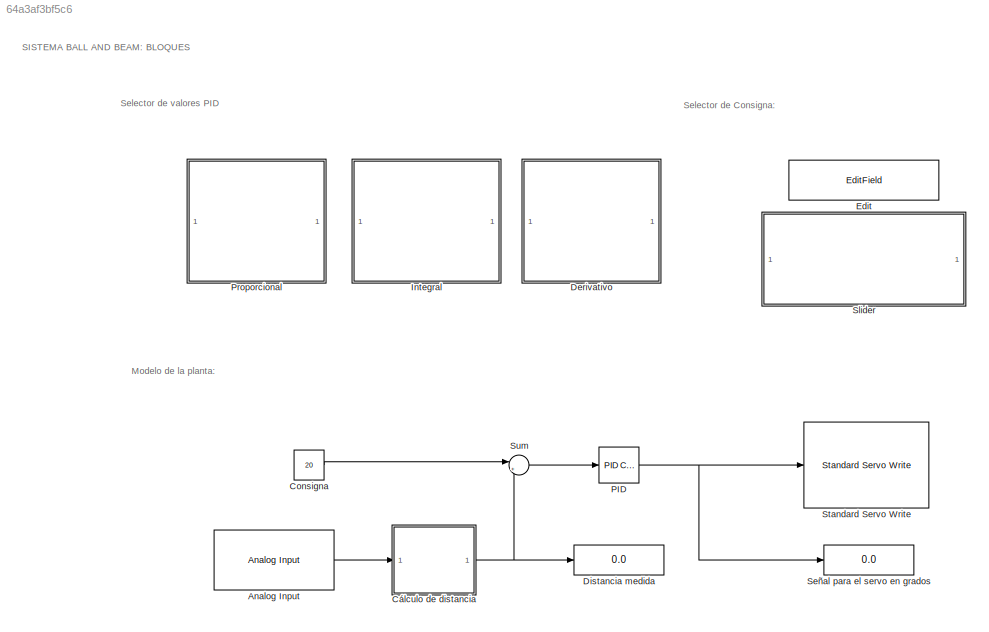
MODEL slx_64a3af3bf5c6
KIND model
CONFIG AbsTol = auto
CONFIG EnableMultiTasking = on
CONFIG FixedStep = 0.06
CONFIG MaxStep = auto
CONFIG MinStep = auto
CONFIG RelTol = 1e-3
CONFIG SampleTimeConstraint = Unconstrained
CONFIG Solver = FixedStepAuto
CONFIG SolverName = FixedStepAuto
CONFIG StartTime = 0.0
CONFIG StopTime = inf
BLOCK [Reference] Analog Input  REF=arduinolib/Analog Input
  Ports = [0, 1]
  SourceBlock = arduinolib/Analog Input
  SourceProductBaseCode = ARDUINO
  SourceProductName = Simulink Support Package for Arduino Hardware
  SourceType = Arduino Analog Input
BLOCK [Constant] Consigna
  OutDataTypeStr = single
  SampleTime = 0.06
  Value = 20
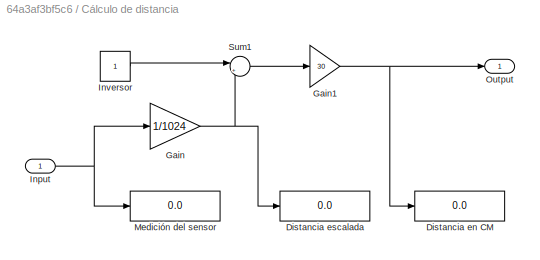
BLOCK [SubSystem] Cálculo de  distancia
  Ports = [1, 1]
  RequestExecContextInheritance = off
BLOCK [Display] Cálculo de  distancia/Distancia en CM
  Decimation = 1
  Ports = [1]
BLOCK [Display] Cálculo de  distancia/Distancia escalada
  Decimation = 1
  Ports = [1]
BLOCK [Gain] Cálculo de  distancia/Gain
  Gain = 1/1024
  OutDataTypeStr = Inherit: Inherit via internal rule
  ParamDataTypeStr = Inherit: Inherit via internal rule
  SaturateOnIntegerOverflow = off
BLOCK [Gain] Cálculo de  distancia/Gain1
  Gain = 30
  OutDataTypeStr = Inherit: Inherit via internal rule
  ParamDataTypeStr = Inherit: Inherit via internal rule
  SaturateOnIntegerOverflow = off
BLOCK [Inport] Cálculo de  distancia/Input
  IconDisplay = Port number
BLOCK [Constant] Cálculo de  distancia/Inversor
  OutDataTypeStr = single
  SampleTime = 0.06
BLOCK [Display] Cálculo de  distancia/Medición del sensor
  Decimation = 1
  Ports = [1]
BLOCK [Outport] Cálculo de  distancia/Output
  IconDisplay = Port number
BLOCK [Sum] Cálculo de  distancia/Sum1
  IconShape = round
  InputSameDT = off
  Inputs = |+-
  OutDataTypeStr = Inherit: Inherit via internal rule
  Ports = [2, 1]
  SaturateOnIntegerOverflow = off
BLOCK [SubSystem] Derivativo
  DialogController = hmiCreateDDGDialog
  IsWebBlock = on
  MaskHideContents = on
  Ports = []
  RequestExecContextInheritance = off
BLOCK [Display] Distancia medida
  Decimation = 1
  Ports = [1]
BLOCK [EditField] Edit
  Alignment = Center
  LabelPosition = Hide
  WebBlockId = 96
BLOCK [SubSystem] Integral
  DialogController = hmiCreateDDGDialog
  IsWebBlock = on
  MaskHideContents = on
  Ports = []
  RequestExecContextInheritance = off
BLOCK [Reference] PID  REF=simulink/Continuous/PID Controller
  Ports = [1, 1]
  SourceBlock = simulink/Continuous/PID Controller
  SourceProductBaseCode = SL
  SourceProductName = Simulink
  SourceType = PID 1dof
BLOCK [SubSystem] Proporcional
  DialogController = hmiCreateDDGDialog
  IsWebBlock = on
  MaskHideContents = on
  Ports = []
  RequestExecContextInheritance = off
BLOCK [Display] Señal para el servo en grados
  Decimation = 1
  Ports = [1]
BLOCK [SubSystem] Slider
  DialogController = hmiCreateDDGDialog
  IsWebBlock = on
  MaskHideContents = on
  Ports = []
  RequestExecContextInheritance = off
BLOCK [Reference] Standard Servo Write  REF=arduinolib/Standard Servo Write
  Ports = [1]
  SourceBlock = arduinolib/Standard Servo Write
  SourceProductBaseCode = ARDUINO
  SourceProductName = Simulink Support Package for Arduino Hardware
  SourceType = Arduino Standard Servo Write
BLOCK [Sum] Sum
  IconShape = round
  InputSameDT = off
  Inputs = |+-
  OutDataTypeStr = Inherit: Inherit via internal rule
  Ports = [2, 1]
  SaturateOnIntegerOverflow = off
ANNOTATION (root): Modelo de la planta:
ANNOTATION (root): SISTEMA BALL AND BEAM: BLOQUES
ANNOTATION (root): Selector de Consigna:
ANNOTATION (root): Selector de valores PID
LINE Analog Input:1 -> Cálculo de  distancia:1
LINE Consigna:1 -> Sum:1
NET Cálculo de  distancia/Gain1:1 -> Cálculo de  distancia/Distancia en CM:1, Cálculo de  distancia/Output:1
NET Cálculo de  distancia/Gain:1 -> Cálculo de  distancia/Distancia escalada:1, Cálculo de  distancia/Sum1:2
NET Cálculo de  distancia/Input:1 -> Cálculo de  distancia/Gain:1, Cálculo de  distancia/Medición del sensor:1
LINE Cálculo de  distancia/Inversor:1 -> Cálculo de  distancia/Sum1:1
LINE Cálculo de  distancia/Sum1:1 -> Cálculo de  distancia/Gain1:1
NET Cálculo de  distancia:1 -> Distancia medida:1, Sum:2
NET PID:1 -> Señal para el servo en grados:1, Standard Servo Write:1
LINE Sum:1 -> PID:1
note: NET lines group one-source signal fan-out (src -> all destinations, sorted); 1:1 wires keep LINE
